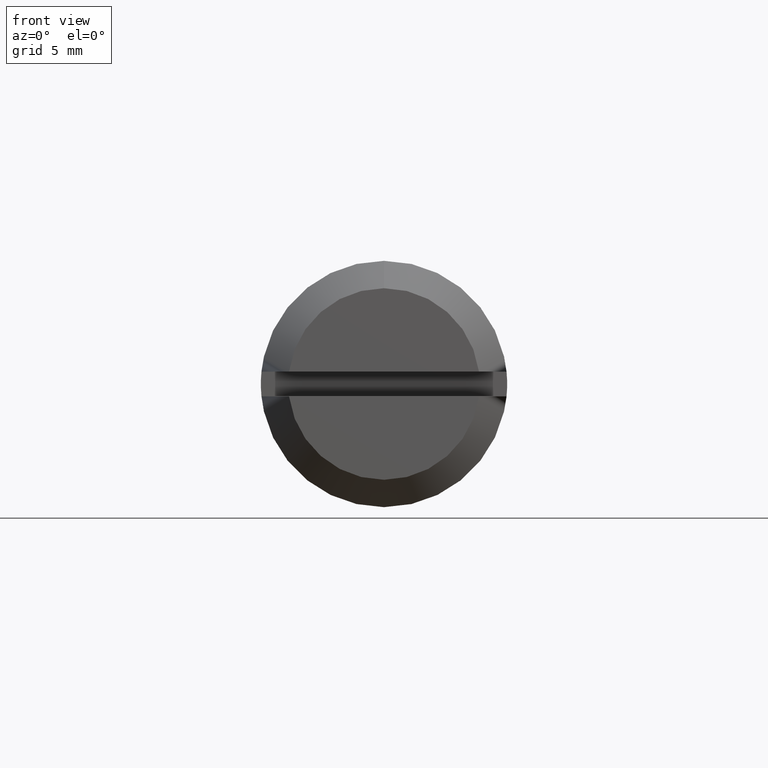
[diagram: clean part render]
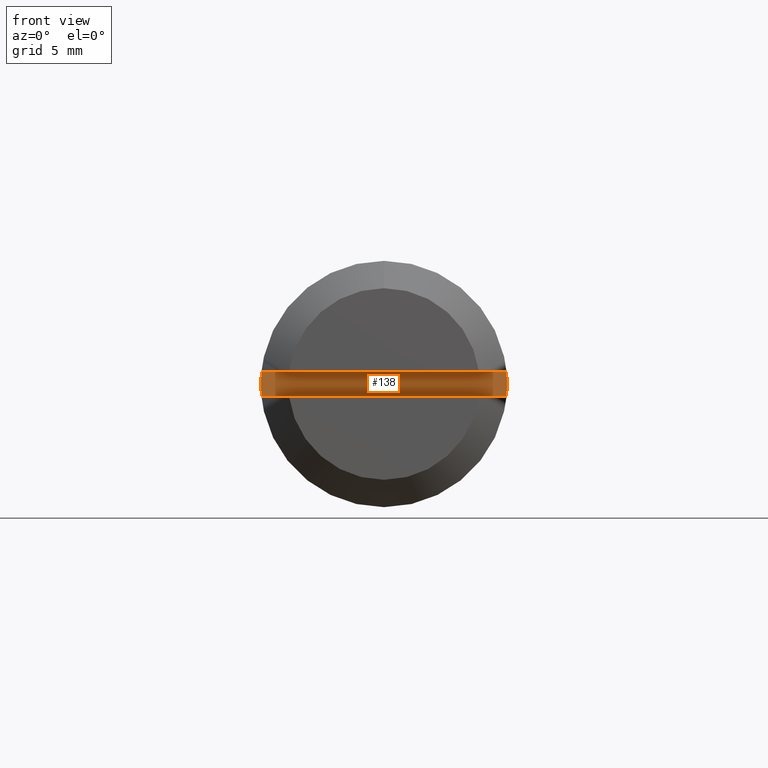
[diagram: same view with one face highlighted and labeled with its STEP entity id]
A machine part, front view. The second image highlights one B-rep face of the part: STEP entity #138.
In plain terms, the highlighted planar face has unit normal (0, -1, 0).
Its self-contained STEP definition (entity closure, byte-faithful):
#138=ADVANCED_FACE('',(#420),#419,.T.);
#419=PLANE('',#717);
#420=FACE_OUTER_BOUND('',#718,.T.);
#714=CARTESIAN_POINT('',(-1.00000000000E+01,-1.08542890185E+01,-1.08000000000E+00));
#715=DIRECTION('',(-1.00000000000E+00,0.00000000000E+00,0.00000000000E+00));
#716=DIRECTION('',(0.00000000000E+00,0.00000000000E+00,1.00000000000E+00));
#717=AXIS2_PLACEMENT_3D('',#714,#715,#716);
#718=EDGE_LOOP('',(#960,#961,#962,#963));
#960=ORIENTED_EDGE('',*,*,#1102,.F.);
#961=ORIENTED_EDGE('',*,*,#1105,.T.);
#962=ORIENTED_EDGE('',*,*,#1106,.T.);
#963=ORIENTED_EDGE('',*,*,#1107,.T.);
#1102=EDGE_CURVE('',#1616,#1617,#1618,.T.);
#1105=EDGE_CURVE('',#1616,#1636,#1637,.T.);
#1106=EDGE_CURVE('',#1636,#1643,#1644,.T.);
#1107=EDGE_CURVE('',#1643,#1617,#1650,.T.);
#1616=VERTEX_POINT('',#2099);
#1617=VERTEX_POINT('',#2100);
#1618=LINE('',#2101,#2102);
#1636=VERTEX_POINT('',#2112);
#1637=CIRCLE('',#2116,8.99990000000E+00);
#1643=VERTEX_POINT('',#2117);
#1644=LINE('',#2118,#2119);
#1650=CIRCLE('',#2124,8.99990000000E+00);
#2099=CARTESIAN_POINT('',(-1.00000000000E+01,8.95478643017E+00,9.00000000000E-01));
#2100=CARTESIAN_POINT('',(-1.00000000000E+01,-8.95478643017E+00,9.00000000000E-01));
#2101=CARTESIAN_POINT('',(-1.00000000000E+01,8.95478643017E+00,9.00000000000E-01));
#2102=VECTOR('',#2103,1.79095728603E+01);
#2103=DIRECTION('',(0.00000000000E+00,-1.00000000000E+00,0.00000000000E+00));
#2112=CARTESIAN_POINT('',(-1.00000000000E+01,8.95478643017E+00,-9.00000000000E-01));
#2113=CARTESIAN_POINT('',(-1.00000000000E+01,0.00000000000E+00,0.00000000000E+00));
#2114=DIRECTION('',(-1.00000000000E+00,0.00000000000E+00,0.00000000000E+00));
#2115=DIRECTION('',(-0.00000000000E+00,-0.00000000000E+00,-1.00000000000E+00));
#2116=AXIS2_PLACEMENT_3D('',#2113,#2114,#2115);
#2117=CARTESIAN_POINT('',(-1.00000000000E+01,-8.95478643017E+00,-9.00000000000E-01));
#2118=CARTESIAN_POINT('',(-1.00000000000E+01,8.95478643017E+00,-9.00000000000E-01));
#2119=VECTOR('',#2120,1.79095728603E+01);
#2120=DIRECTION('',(0.00000000000E+00,-1.00000000000E+00,0.00000000000E+00));
#2121=CARTESIAN_POINT('',(-1.00000000000E+01,0.00000000000E+00,0.00000000000E+00));
#2122=DIRECTION('',(-1.00000000000E+00,0.00000000000E+00,0.00000000000E+00));
#2123=DIRECTION('',(-0.00000000000E+00,-0.00000000000E+00,-1.00000000000E+00));
#2124=AXIS2_PLACEMENT_3D('',#2121,#2122,#2123);